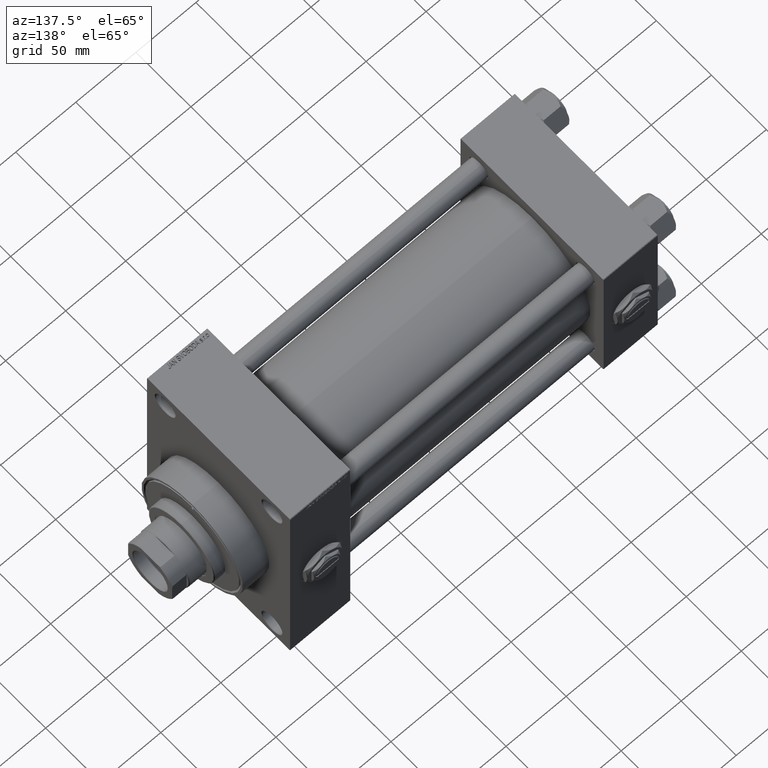
[diagram: clean part render]
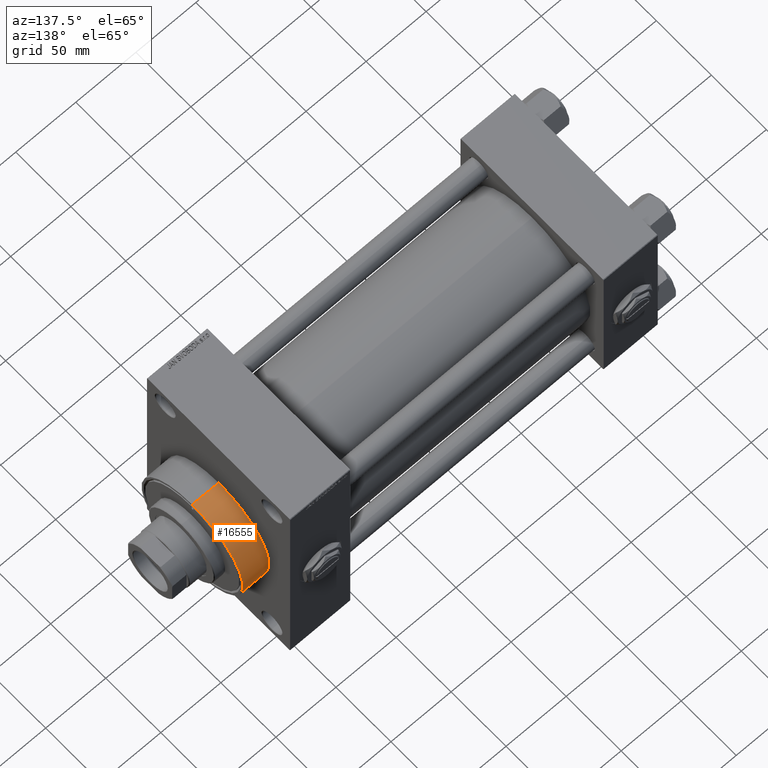
[diagram: same view with one face highlighted and labeled with its STEP entity id]
A machine part, auxiliary view. The second image highlights one B-rep face of the part: STEP entity #16555.
In plain terms, the highlighted cylindrical surface (partial cylindrical patch) has radius 46 mm, axis along (-1, -0, -0).
Its self-contained STEP definition (entity closure, byte-faithful):
#185 = CYLINDRICAL_SURFACE ( 'NONE', #3999, 46.00000000000000000 ) ;
#1136 = CARTESIAN_POINT ( 'NONE',  ( 328.0000000000000000, 5.633375276077824704E-15, -46.00000000000000000 ) ) ;
#1186 = CARTESIAN_POINT ( 'NONE',  ( 328.0000000000000000, 0.000000000000000000, 46.00000000000000000 ) ) ;
#3999 = AXIS2_PLACEMENT_3D ( 'NONE', #26512, #31057, #7529 ) ;
#4510 = ORIENTED_EDGE ( 'NONE', *, *, #25338, .T. ) ;
#4696 = DIRECTION ( 'NONE',  ( 1.000000000000000000, 0.000000000000000000, 0.000000000000000000 ) ) ;
#7529 = DIRECTION ( 'NONE',  ( 0.000000000000000000, 0.000000000000000000, 1.000000000000000000 ) ) ;
#7822 = CARTESIAN_POINT ( 'NONE',  ( 306.0000000000000000, 0.000000000000000000, 0.000000000000000000 ) ) ;
#8504 = DIRECTION ( 'NONE',  ( 0.000000000000000000, 0.000000000000000000, -1.000000000000000000 ) ) ;
#13027 = DIRECTION ( 'NONE',  ( -1.000000000000000000, -0.000000000000000000, -0.000000000000000000 ) ) ;
#14594 = CARTESIAN_POINT ( 'NONE',  ( 306.0000000000000000, 5.633375276077824704E-15, -46.00000000000000000 ) ) ;
#16555 = ADVANCED_FACE ( 'NONE', ( #46447 ), #185, .T. ) ;
#16687 = EDGE_CURVE ( 'NONE', #38110, #17657, #29074, .T. ) ;
#17657 = VERTEX_POINT ( 'NONE', #1186 ) ;
#17880 = EDGE_LOOP ( 'NONE', ( #33867, #28846, #4510, #18423 ) ) ;
#18423 = ORIENTED_EDGE ( 'NONE', *, *, #45858, .F. ) ;
#18531 = EDGE_CURVE ( 'NONE', #38110, #19155, #39830, .T. ) ;
#19144 = LINE ( 'NONE', #27720, #42155 ) ;
#19155 = VERTEX_POINT ( 'NONE', #14594 ) ;
#21055 = VECTOR ( 'NONE', #13027, 1000.000000000000000 ) ;
#24008 = DIRECTION ( 'NONE',  ( 0.000000000000000000, 0.000000000000000000, -1.000000000000000000 ) ) ;
#25338 = EDGE_CURVE ( 'NONE', #19155, #48893, #30991, .T. ) ;
#26512 = CARTESIAN_POINT ( 'NONE',  ( 328.0000000000000000, 0.000000000000000000, 0.000000000000000000 ) ) ;
#27226 = DIRECTION ( 'NONE',  ( -1.000000000000000000, -0.000000000000000000, -0.000000000000000000 ) ) ;
#27720 = CARTESIAN_POINT ( 'NONE',  ( 328.0000000000000000, 0.000000000000000000, 46.00000000000000000 ) ) ;
#28846 = ORIENTED_EDGE ( 'NONE', *, *, #18531, .T. ) ;
#29074 = CIRCLE ( 'NONE', #44371, 46.00000000000000000 ) ;
#30991 = CIRCLE ( 'NONE', #49536, 46.00000000000000000 ) ;
#31057 = DIRECTION ( 'NONE',  ( -1.000000000000000000, -0.000000000000000000, -0.000000000000000000 ) ) ;
#32789 = CARTESIAN_POINT ( 'NONE',  ( 306.0000000000000000, 0.000000000000000000, 46.00000000000000000 ) ) ;
#33867 = ORIENTED_EDGE ( 'NONE', *, *, #16687, .F. ) ;
#34189 = CARTESIAN_POINT ( 'NONE',  ( 328.0000000000000000, 5.633375276077824704E-15, -46.00000000000000000 ) ) ;
#38110 = VERTEX_POINT ( 'NONE', #34189 ) ;
#39117 = CARTESIAN_POINT ( 'NONE',  ( 328.0000000000000000, 0.000000000000000000, 0.000000000000000000 ) ) ;
#39830 = LINE ( 'NONE', #1136, #21055 ) ;
#42155 = VECTOR ( 'NONE', #27226, 1000.000000000000000 ) ;
#42965 = DIRECTION ( 'NONE',  ( 1.000000000000000000, 0.000000000000000000, 0.000000000000000000 ) ) ;
#44371 = AXIS2_PLACEMENT_3D ( 'NONE', #39117, #4696, #8504 ) ;
#45858 = EDGE_CURVE ( 'NONE', #17657, #48893, #19144, .T. ) ;
#46447 = FACE_OUTER_BOUND ( 'NONE', #17880, .T. ) ;
#48893 = VERTEX_POINT ( 'NONE', #32789 ) ;
#49536 = AXIS2_PLACEMENT_3D ( 'NONE', #7822, #42965, #24008 ) ;